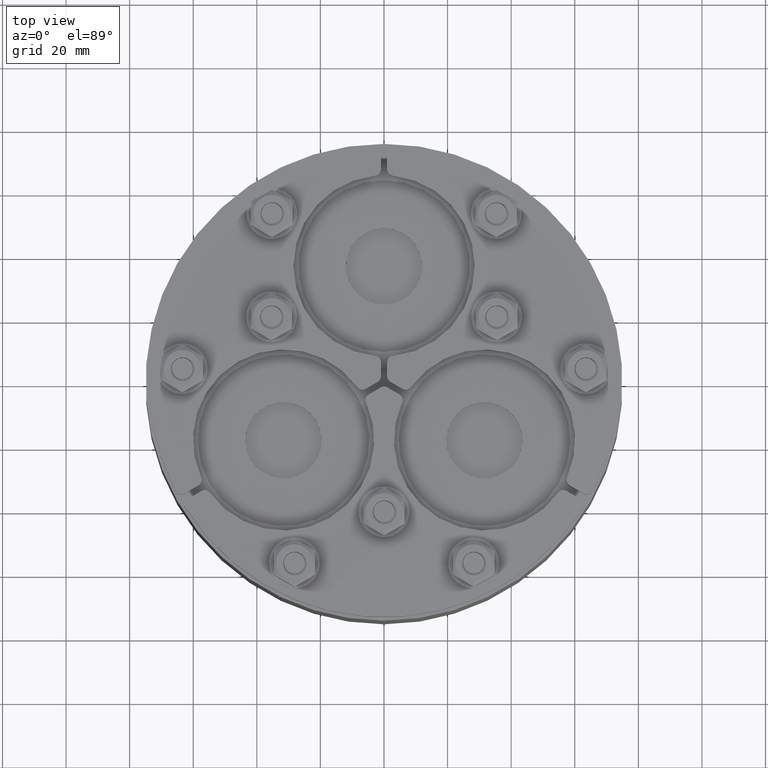
[diagram: clean part render]
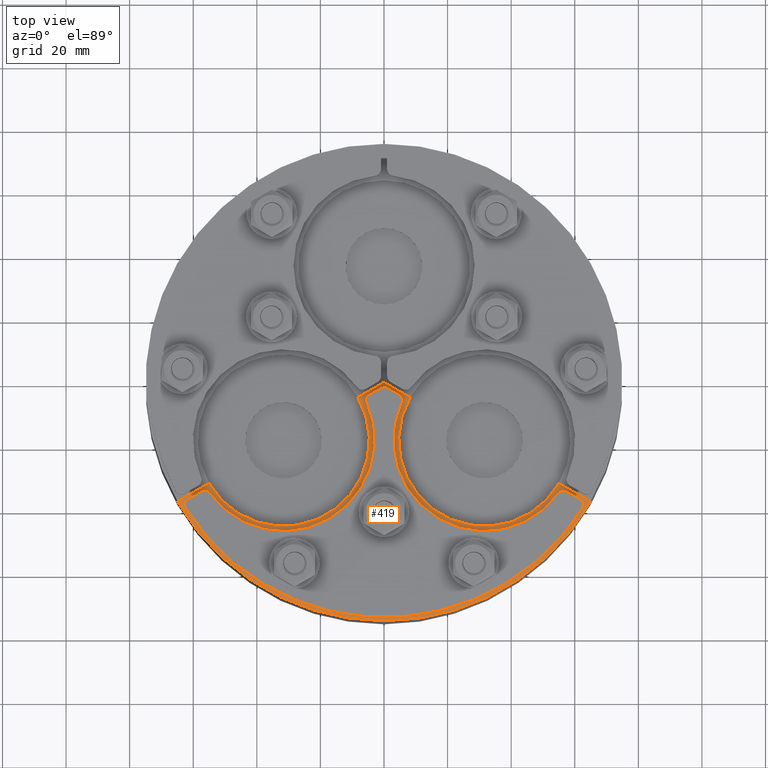
[diagram: same view with one face highlighted and labeled with its STEP entity id]
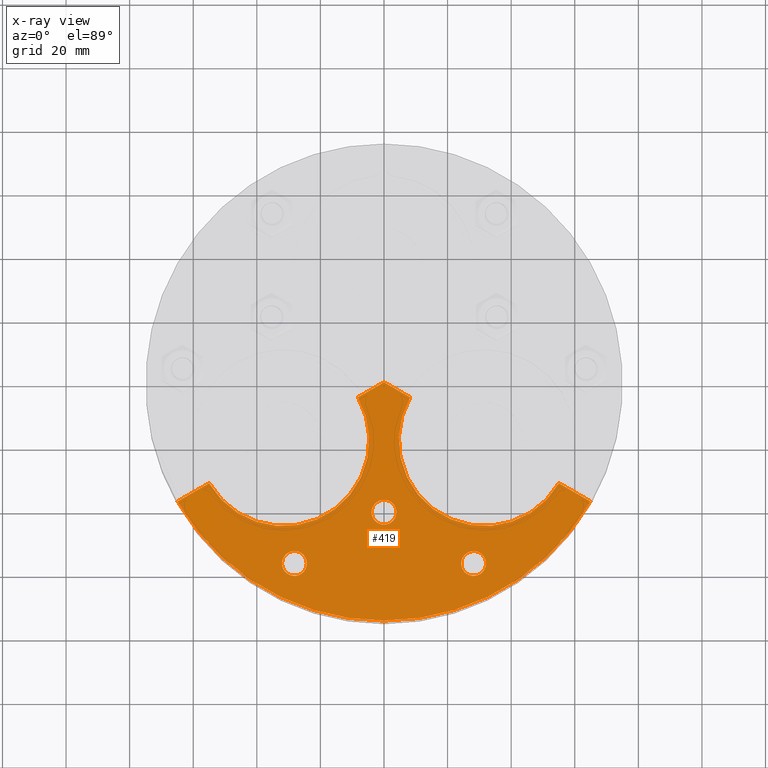
[diagram: x-ray of the same camera — body ghosted, the highlighted face saturated]
A machine part, top view. The second image highlights one B-rep face of the part: STEP entity #419.
The next image is the same camera in x-ray: the body ghosted, the highlighted face saturated — about 0% of this face is hidden behind the body in this view.
In plain terms, the highlighted planar face has unit normal (0, 0, 1).
Its self-contained STEP definition (entity closure, byte-faithful):
#200=CARTESIAN_POINT('',(1.181449E-029,0.0,32.5));
#201=VERTEX_POINT('',#200);
#208=CARTESIAN_POINT('',(8.227241335952126,-4.749999999999954,32.500000000000007));
#209=VERTEX_POINT('',#208);
#210=CARTESIAN_POINT('',(8.227241335952122,-4.749999999999954,32.5));
#211=DIRECTION('',(-0.866025403784439,0.499999999999999,0.0));
#212=VECTOR('',#211,9.499999999999941);
#213=LINE('',#210,#212);
#214=EDGE_CURVE('',#209,#201,#213,.T.);
#232=CARTESIAN_POINT('',(-54.992613140311768,-31.750000000000025,32.5));
#233=VERTEX_POINT('',#232);
#248=CARTESIAN_POINT('',(-64.951905283832872,-37.500000000000071,32.5));
#249=VERTEX_POINT('',#248);
#256=CARTESIAN_POINT('',(-54.992613140311768,-31.750000000000021,32.5));
#257=DIRECTION('',(-0.866025403784438,-0.500000000000001,0.0));
#258=VECTOR('',#257,11.500000000000076);
#259=LINE('',#256,#258);
#260=EDGE_CURVE('',#233,#249,#259,.T.);
#272=CARTESIAN_POINT('',(64.951905283832971,-37.499999999999915,32.5));
#273=VERTEX_POINT('',#272);
#288=CARTESIAN_POINT('',(54.99261314031186,-31.749999999999893,32.500000000000007));
#289=VERTEX_POINT('',#288);
#296=CARTESIAN_POINT('',(64.951905283832971,-37.499999999999922,32.5));
#297=DIRECTION('',(-0.866025403784439,0.499999999999999,0.0));
#298=VECTOR('',#297,11.500000000000069);
#299=LINE('',#296,#298);
#300=EDGE_CURVE('',#273,#289,#299,.T.);
#318=CARTESIAN_POINT('',(-8.22724133595209,-4.74999999999997,32.5));
#319=VERTEX_POINT('',#318);
#326=CARTESIAN_POINT('',(0.0,2.664535E-015,32.5));
#327=DIRECTION('',(-0.866025403784438,-0.500000000000001,0.0));
#328=VECTOR('',#327,9.49999999999992);
#329=LINE('',#326,#328);
#330=EDGE_CURVE('',#201,#319,#329,.T.);
#342=CARTESIAN_POINT('',(0.0,8.881784E-015,32.5));
#343=DIRECTION('',(0.0,0.0,1.0));
#344=DIRECTION('',(-0.868018475553495,-0.496531898368863,0.0));
#345=AXIS2_PLACEMENT_3D('',#342,#343,#344);
#346=CIRCLE('',#345,75.000000000000014);
#347=EDGE_CURVE('',#249,#273,#346,.T.);
#360=CARTESIAN_POINT('',(2.042186E-014,-43.075707042352093,32.5));
#361=DIRECTION('',(0.0,0.0,1.0));
#362=DIRECTION('',(1.0,0.0,0.0));
#363=AXIS2_PLACEMENT_3D('',#360,#361,#362);
#364=PLANE('',#363);
#365=ORIENTED_EDGE('',*,*,#300,.T.);
#366=CARTESIAN_POINT('',(31.609927238131945,-18.249999999999993,32.5));
#367=DIRECTION('',(0.0,0.0,-1.0));
#368=DIRECTION('',(-0.866025403784438,0.500000000000002,0.0));
#369=AXIS2_PLACEMENT_3D('',#366,#367,#368);
#370=CIRCLE('',#369,27.000000000000007);
#371=EDGE_CURVE('',#289,#209,#370,.T.);
#372=ORIENTED_EDGE('',*,*,#371,.T.);
#373=ORIENTED_EDGE('',*,*,#214,.T.);
#374=ORIENTED_EDGE('',*,*,#330,.T.);
#375=CARTESIAN_POINT('',(-31.609927238131913,-18.250000000000021,32.5));
#376=DIRECTION('',(0.0,0.0,-1.0));
#377=DIRECTION('',(-0.866025403784437,-0.500000000000002,0.0));
#378=AXIS2_PLACEMENT_3D('',#375,#376,#377);
#379=CIRCLE('',#378,26.999999999999996);
#380=EDGE_CURVE('',#319,#233,#379,.T.);
#381=ORIENTED_EDGE('',*,*,#380,.T.);
#382=ORIENTED_EDGE('',*,*,#260,.T.);
#383=ORIENTED_EDGE('',*,*,#347,.T.);
#384=EDGE_LOOP('',(#365,#372,#373,#374,#381,#382,#383));
#385=FACE_OUTER_BOUND('',#384,.T.);
#386=CARTESIAN_POINT('',(3.900000000000005,-40.899999999999999,32.5));
#387=VERTEX_POINT('',#386);
#388=CARTESIAN_POINT('',(5.008805E-015,-40.899999999999999,32.5));
#389=DIRECTION('',(0.0,0.0,-1.0));
#390=DIRECTION('',(-1.0,0.0,0.0));
#391=AXIS2_PLACEMENT_3D('',#388,#389,#390);
#392=CIRCLE('',#391,3.9);
#393=EDGE_CURVE('',#387,#387,#392,.T.);
#394=ORIENTED_EDGE('',*,*,#393,.T.);
#395=EDGE_LOOP('',(#394));
#396=FACE_BOUND('',#395,.T.);
#397=CARTESIAN_POINT('',(-24.279327736417816,-57.016536972386831,32.5));
#398=VERTEX_POINT('',#397);
#399=CARTESIAN_POINT('',(-28.179327736417818,-57.016536972386831,32.5));
#400=DIRECTION('',(0.0,0.0,-1.0));
#401=DIRECTION('',(-1.0,0.0,0.0));
#402=AXIS2_PLACEMENT_3D('',#399,#400,#401);
#403=CIRCLE('',#402,3.9);
#404=EDGE_CURVE('',#398,#398,#403,.T.);
#405=ORIENTED_EDGE('',*,*,#404,.T.);
#406=EDGE_LOOP('',(#405));
#407=FACE_BOUND('',#406,.T.);
#408=CARTESIAN_POINT('',(32.079327736417838,-57.016536972386817,32.5));
#409=VERTEX_POINT('',#408);
#410=CARTESIAN_POINT('',(28.179327736417832,-57.016536972386817,32.5));
#411=DIRECTION('',(0.0,0.0,-1.0));
#412=DIRECTION('',(-1.0,0.0,0.0));
#413=AXIS2_PLACEMENT_3D('',#410,#411,#412);
#414=CIRCLE('',#413,3.9);
#415=EDGE_CURVE('',#409,#409,#414,.T.);
#416=ORIENTED_EDGE('',*,*,#415,.T.);
#417=EDGE_LOOP('',(#416));
#418=FACE_BOUND('',#417,.T.);
#419=ADVANCED_FACE('',(#385,#396,#407,#418),#364,.T.);